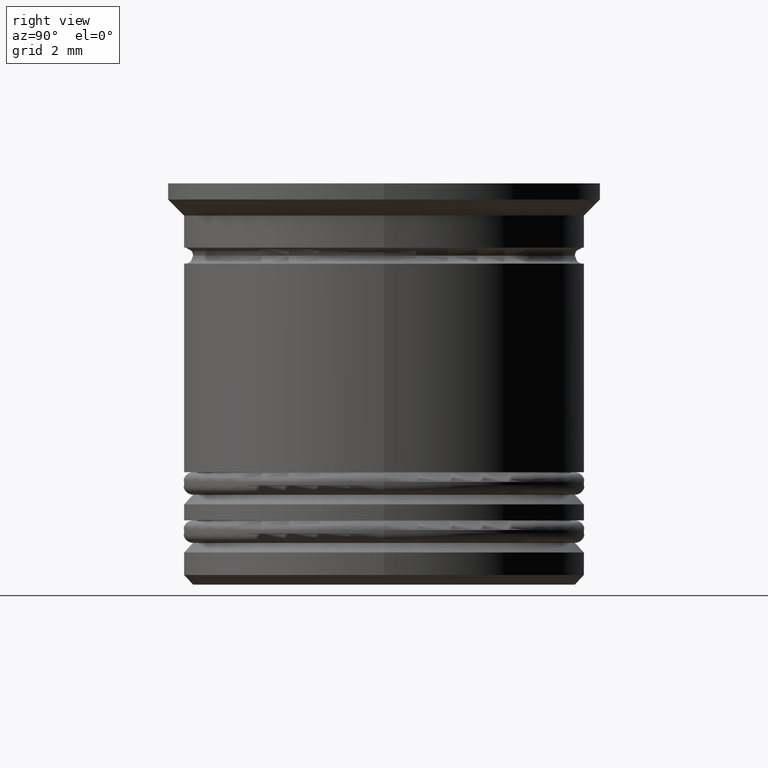
[diagram: clean part render]
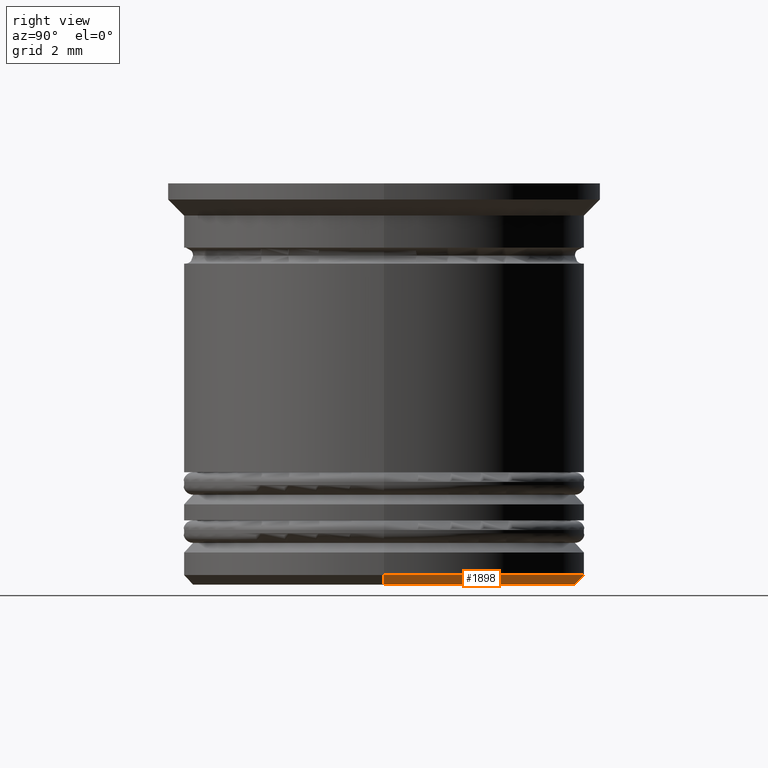
[diagram: same view with one face highlighted and labeled with its STEP entity id]
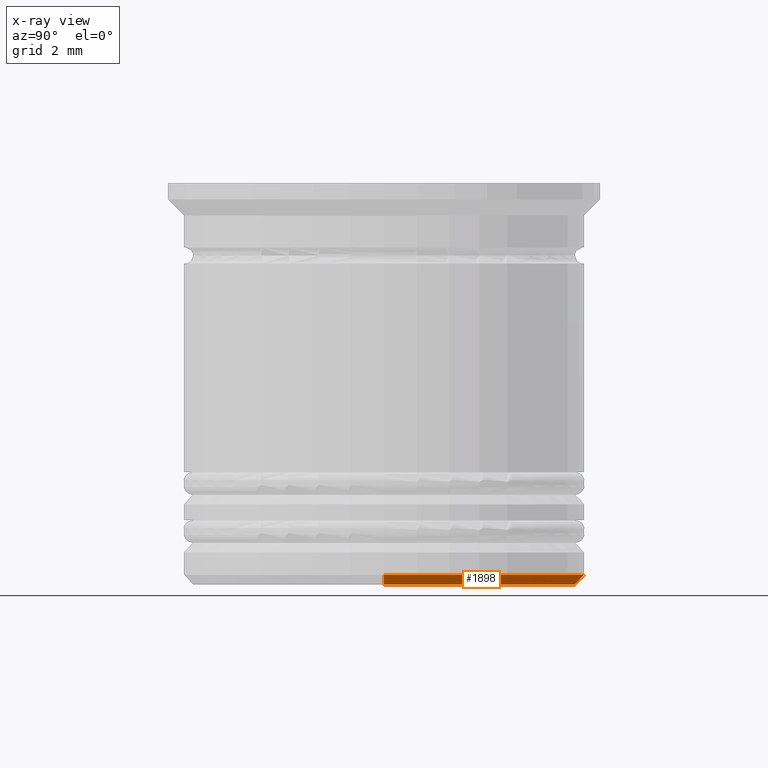
[diagram: x-ray of the same camera — body ghosted, the highlighted face saturated]
A machine part, right view. The second image highlights one B-rep face of the part: STEP entity #1898.
The next image is the same camera in x-ray: the body ghosted, the highlighted face saturated — about 0% of this face is hidden behind the body in this view.
In plain terms, the highlighted conical surface has half-angle 45 deg.
Its self-contained STEP definition (entity closure, byte-faithful):
#42 = DIRECTION ( 'NONE',  ( 0.7071067811865474617, 0.000000000000000000, 0.7071067811865474617 ) ) ;
#158 = AXIS2_PLACEMENT_3D ( 'NONE', #399, #1155, #1631 ) ;
#203 = DIRECTION ( 'NONE',  ( 1.000000000000000000, 0.000000000000000000, 0.000000000000000000 ) ) ;
#279 = EDGE_CURVE ( 'NONE', #1520, #1337, #1761, .T. ) ;
#302 = EDGE_CURVE ( 'NONE', #1271, #1730, #491, .T. ) ;
#359 = CARTESIAN_POINT ( 'NONE',  ( 0.000000000000000000, 0.000000000000000000, -12.20000000000000284 ) ) ;
#383 = CARTESIAN_POINT ( 'NONE',  ( -6.250000000000000000, 7.654042494670957606E-16, -12.20000000000000284 ) ) ;
#399 = CARTESIAN_POINT ( 'NONE',  ( 0.000000000000000000, 0.000000000000000000, -12.50000000000000000 ) ) ;
#491 = LINE ( 'NONE', #1436, #1791 ) ;
#680 = ORIENTED_EDGE ( 'NONE', *, *, #302, .F. ) ;
#732 = EDGE_LOOP ( 'NONE', ( #1169, #1789, #1881, #680 ) ) ;
#831 = CARTESIAN_POINT ( 'NONE',  ( 0.000000000000000000, 0.000000000000000000, -12.20000000000000284 ) ) ;
#837 = FACE_OUTER_BOUND ( 'NONE', #732, .T. ) ;
#939 = CIRCLE ( 'NONE', #158, 5.950000000000001954 ) ;
#1040 = AXIS2_PLACEMENT_3D ( 'NONE', #359, #1923, #203 ) ;
#1093 = AXIS2_PLACEMENT_3D ( 'NONE', #831, #1445, #1148 ) ;
#1123 = DIRECTION ( 'NONE',  ( -0.7071067811865474617, 8.659560562354932858E-17, 0.7071067811865474617 ) ) ;
#1148 = DIRECTION ( 'NONE',  ( -1.000000000000000000, 0.000000000000000000, 0.000000000000000000 ) ) ;
#1150 = CARTESIAN_POINT ( 'NONE',  ( -6.250000000000000000, 7.654042494670957606E-16, -12.20000000000000284 ) ) ;
#1155 = DIRECTION ( 'NONE',  ( 0.000000000000000000, 0.000000000000000000, -1.000000000000000000 ) ) ;
#1169 = ORIENTED_EDGE ( 'NONE', *, *, #1843, .F. ) ;
#1266 = CARTESIAN_POINT ( 'NONE',  ( -5.950000000000001954, 7.470345474798856265E-16, -12.50000000000000000 ) ) ;
#1271 = VERTEX_POINT ( 'NONE', #1434 ) ;
#1337 = VERTEX_POINT ( 'NONE', #1150 ) ;
#1354 = CONICAL_SURFACE ( 'NONE', #1040, 6.250000000000000000, 0.7853981633974482790 ) ;
#1423 = CARTESIAN_POINT ( 'NONE',  ( 6.250000000000000000, 0.000000000000000000, -12.20000000000000284 ) ) ;
#1434 = CARTESIAN_POINT ( 'NONE',  ( 5.950000000000001954, 0.000000000000000000, -12.50000000000000000 ) ) ;
#1436 = CARTESIAN_POINT ( 'NONE',  ( 6.250000000000000000, 0.000000000000000000, -12.20000000000000284 ) ) ;
#1445 = DIRECTION ( 'NONE',  ( -0.000000000000000000, -0.000000000000000000, 1.000000000000000000 ) ) ;
#1520 = VERTEX_POINT ( 'NONE', #1266 ) ;
#1631 = DIRECTION ( 'NONE',  ( -1.000000000000000000, 0.000000000000000000, 0.000000000000000000 ) ) ;
#1689 = VECTOR ( 'NONE', #1123, 1000.000000000000114 ) ;
#1730 = VERTEX_POINT ( 'NONE', #1423 ) ;
#1761 = LINE ( 'NONE', #383, #1689 ) ;
#1789 = ORIENTED_EDGE ( 'NONE', *, *, #279, .T. ) ;
#1791 = VECTOR ( 'NONE', #42, 1000.000000000000114 ) ;
#1797 = EDGE_CURVE ( 'NONE', #1730, #1337, #1959, .T. ) ;
#1843 = EDGE_CURVE ( 'NONE', #1520, #1271, #939, .T. ) ;
#1881 = ORIENTED_EDGE ( 'NONE', *, *, #1797, .F. ) ;
#1898 = ADVANCED_FACE ( 'NONE', ( #837 ), #1354, .T. ) ;
#1923 = DIRECTION ( 'NONE',  ( -0.000000000000000000, -0.000000000000000000, 1.000000000000000000 ) ) ;
#1959 = CIRCLE ( 'NONE', #1093, 6.250000000000000000 ) ;